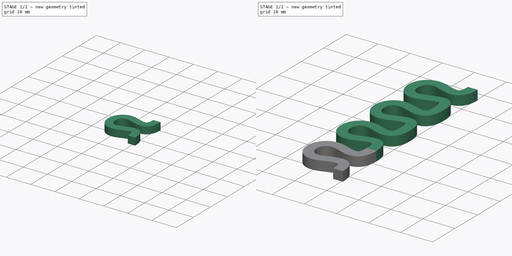
[diagram: build sequence overview — one tinted view per stage of 2, left to right]
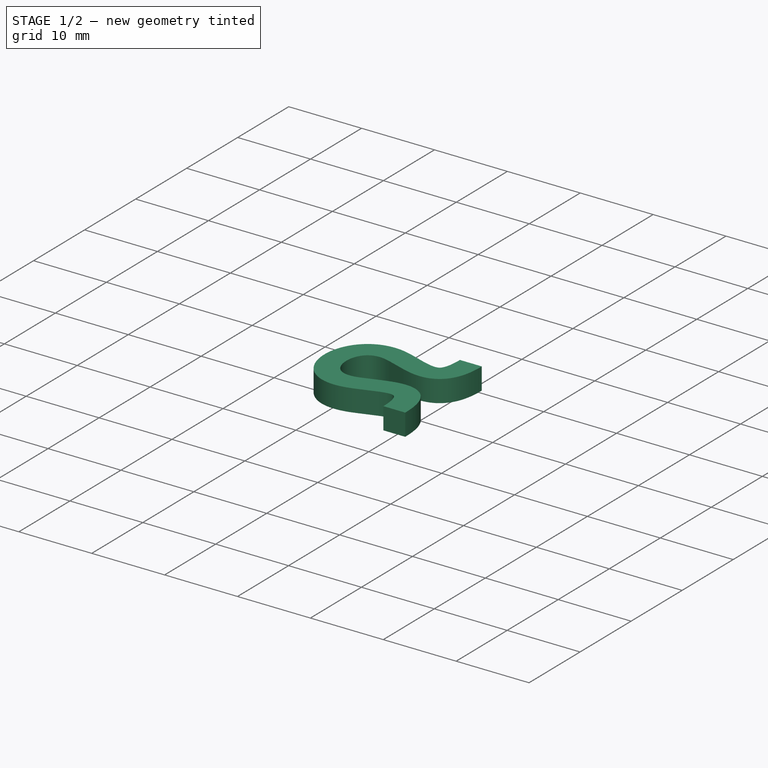
[diagram: stage 1 of 2 — iso view after this stage's code; geometry added in this stage tinted green]
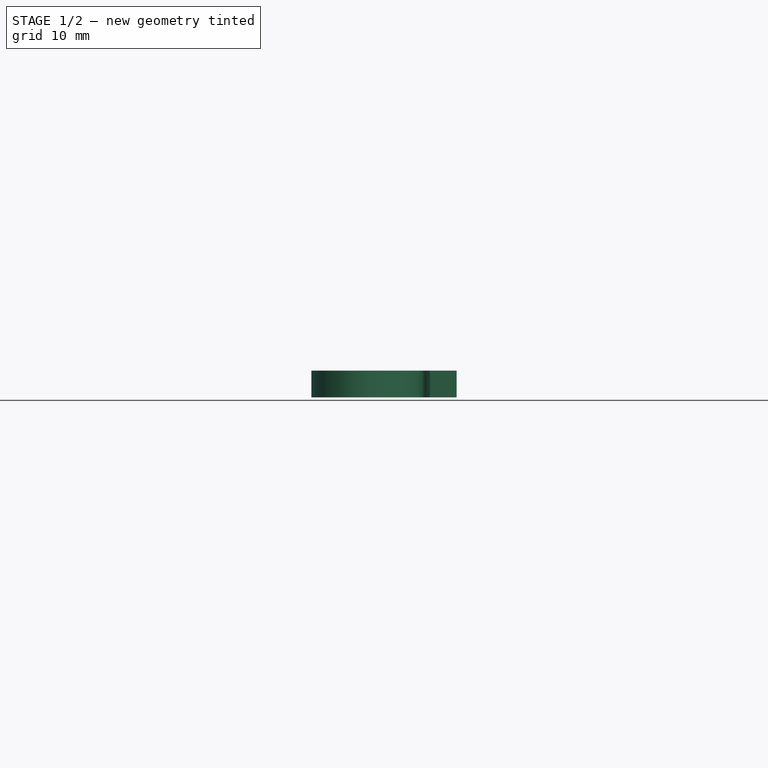
[diagram: stage 1 of 2 — front view after this stage's code; geometry added in this stage tinted green]
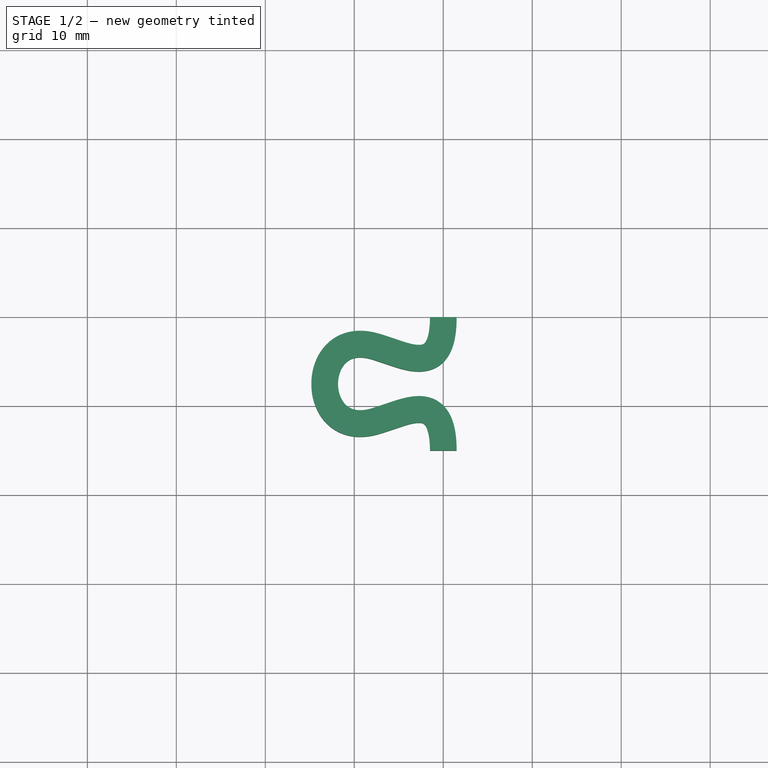
[diagram: stage 1 of 2 — top view after this stage's code; geometry added in this stage tinted green]
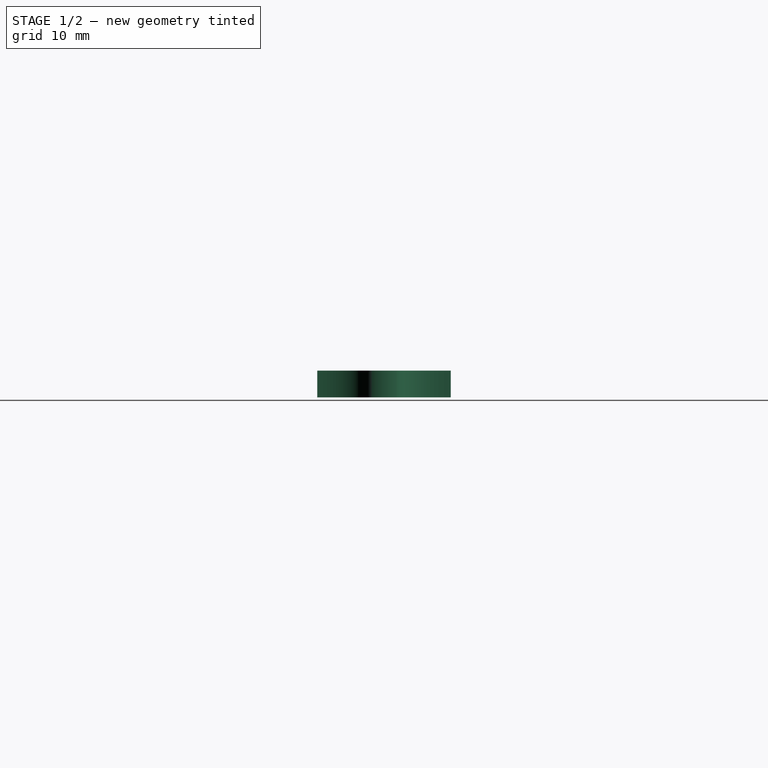
[diagram: stage 1 of 2 — right view after this stage's code; geometry added in this stage tinted green]
FCSTD DOCUMENT  (FreeCAD 1.1R20251111 (Git shallow))
Label: spring
License: All rights reserved
LicenseURL: https://en.wikipedia.org/wiki/All_rights_reserved
objects: Sketcher::SketchObject×2, App::Point×1, PartDesign::AdditivePipe×1, PartDesign::LinearPattern×1, PartDesign::Body×1
note: 10 computed .brp shape members not serialized (recipe doc carries the construction recipe); baked Part::Feature solids carry a one-line shape summary decoded from their .brp

FEATURE [App::Point] Origin001
  Role = Origin
FEATURE [Sketcher::SketchObject] Sketch
  ArcFitTolerance = 1e-06
  AttachmentSupport = -> [Origin]
  ExternalTypes = [0]
  FullyConstrained = true
  MakeInternals = false
  MapMode = 5
  sketch-geometry (19):
    g0-g6: Circle [constr] x7 (B-spline internal-alignment scaffolding for g7; pole/knot coordinates omitted)
    g7: BSplineCurve PolesCount=7 KnotsCount=5 Degree=3 IsPeriodic=0
    g8-g12: GeomPoint [constr] x5 (B-spline internal-alignment scaffolding for g7; pole/knot coordinates omitted)
    g13: LineSegment [constr] StartX=0 StartY=-7.5 StartZ=0 EndX=-10 EndY=-7.5 EndZ=0
    g14: LineSegment [constr] StartX=-10 StartY=-7.5 StartZ=0 EndX=-10 EndY=0 EndZ=0
    g15: LineSegment [constr] StartX=-10 StartY=-7.5 StartZ=0 EndX=-10 EndY=-15 EndZ=0
    g16: LineSegment [constr] StartX=0 StartY=-7.5 StartZ=0 EndX=0 EndY=0 EndZ=0
    g17: LineSegment [constr] StartX=0 StartY=-7.5 StartZ=0 EndX=0 EndY=-15 EndZ=0
    g18: LineSegment [constr] StartX=-10 StartY=-7.5 StartZ=0 EndX=-15 EndY=-7.5 EndZ=0
  constraints (29):
    c: Weight(g0) = 1
    c: Equal(g0, g1-g6) x6
    c: InternalAlignment(g0-g6 -> g7) x7
    c: InternalAlignment(g8-g12 -> g7) x5
    c: Coincident(g0,g-1)
    c: PointOnObject(g1,g-2)
    c: PointOnObject(g6,g-2)
    c: Coincident(g5,g1)
    c: Coincident(g13,g1)
    c: Horizontal(g13)
    c: Coincident(g14,g13)
    c: Vertical(g14)
    c: Coincident(g15,g13)
    c: Vertical(g15)
    c: Coincident(g14,g2)
    c: Coincident(g15,g4)
    c: Equal(g14,g15)
    c: Coincident(g16,g1)
    c: Coincident(g16,g7)
    c: Coincident(g17,g1)
    c: Coincident(g17,g7)
    c: Equal(g16,g17)
    c: Coincident(g18,g13)
    c: Horizontal(g18)
    c: Coincident(g18,g3)
    c: DistanceX(g18,g18) = 5
    c: DistanceX(g2,g0) = 10
    c: Equal(g14,g16)
    c: DistanceY(g7,g0) = 15
FEATURE [Sketcher::SketchObject] Sketch001
  ArcFitTolerance = 1e-06
  AttachmentSupport = -> [Origin]
  ExternalTypes = [0]
  FullyConstrained = false
  MakeInternals = false
  MapMode = 5
  Placement = pos=(0,0,0) rot=(1,0,0;1.5708rad)
  sketch-geometry (5):
    g0: LineSegment StartX=-1.49266 StartY=-1.5 StartZ=0 EndX=1.50734 EndY=-1.5 EndZ=0
    g1: LineSegment StartX=1.50734 StartY=-1.5 StartZ=0 EndX=1.50734 EndY=1.5 EndZ=0
    g2: LineSegment StartX=1.50734 StartY=1.5 StartZ=0 EndX=-1.49266 EndY=1.5 EndZ=0
    g3: LineSegment StartX=-1.49266 StartY=1.5 StartZ=0 EndX=-1.49266 EndY=-1.5 EndZ=0
    g4: GeomPoint [constr] X=0.007344 Y=0 Z=0
  constraints (12):
    c: Coincident(g0,g1)
    c: Coincident(g1,g2)
    c: Coincident(g2,g3)
    c: Coincident(g3,g0)
    c: Horizontal(g0)
    c: Horizontal(g2)
    c: Vertical(g1)
    c: Vertical(g3)
    c: Symmetric(g2,g0,g4)
    c: Distance(g1,g3) = 3
    c: Distance(g0,g2) = 3
    c: PointOnObject(g4,g-1)
FEATURE [PartDesign::AdditivePipe] AdditivePipe
  AuxiliaryCurvilinear = true
  AuxiliarySpineTangent = false
  Binormal = (0,0,0)
  Mode = 0
  Profile = -> Sketch001
  Refine = true
  Spine = -> Sketch
  SpineTangent = false
  Suppressed = false
  Transformation = 0
  Transition = 0
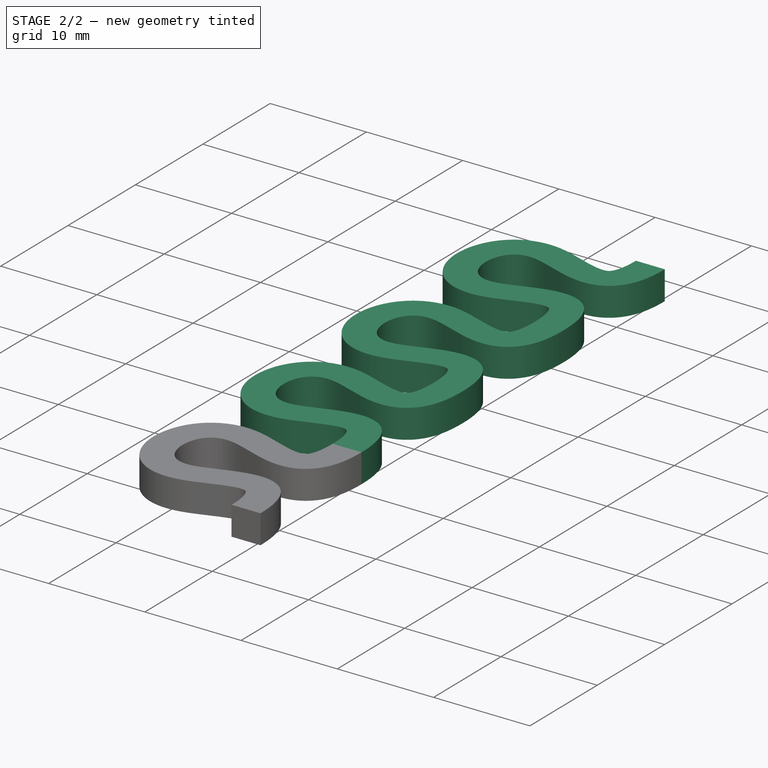
[diagram: stage 2 of 2 — iso view after this stage's code; geometry added in this stage tinted green]
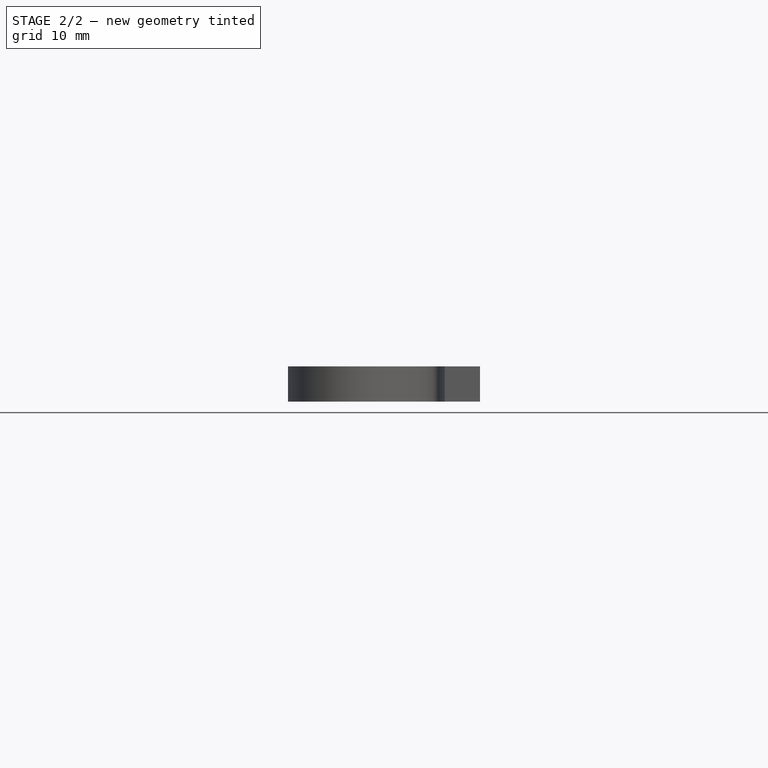
[diagram: stage 2 of 2 — front view after this stage's code; geometry added in this stage tinted green]
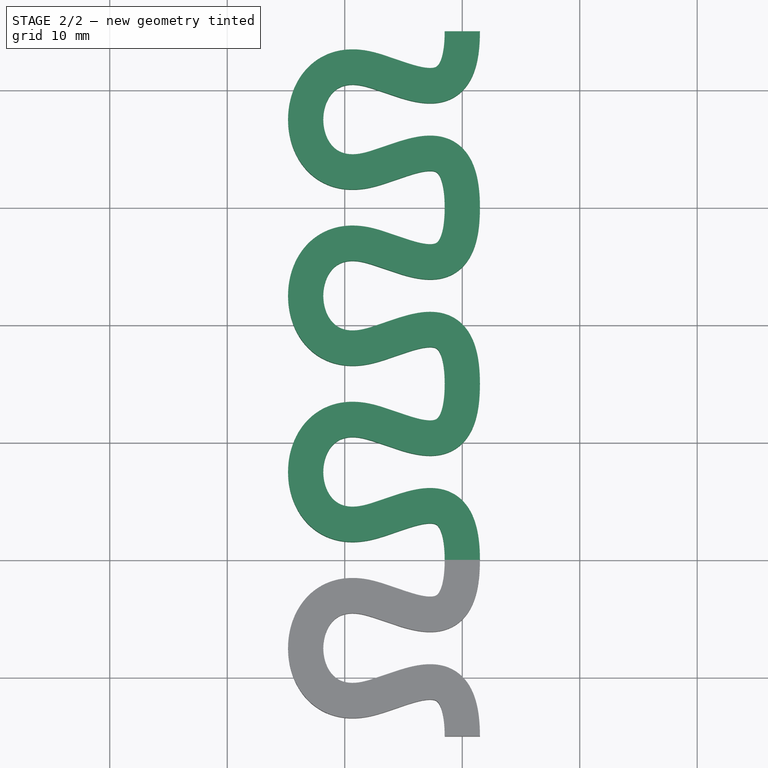
[diagram: stage 2 of 2 — top view after this stage's code; geometry added in this stage tinted green]
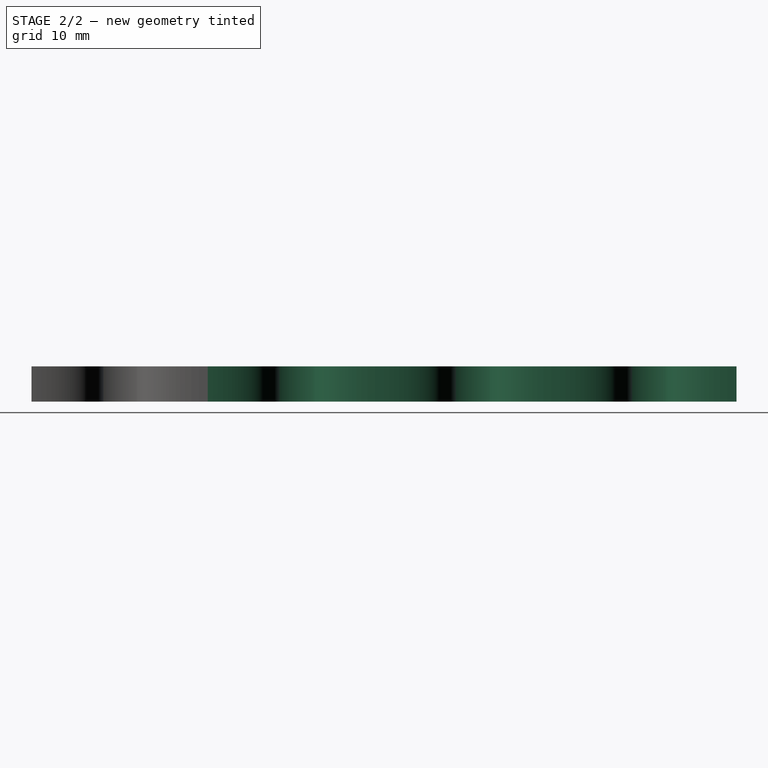
[diagram: stage 2 of 2 — right view after this stage's code; geometry added in this stage tinted green]
FEATURE [PartDesign::LinearPattern] LinearPattern
  BaseFeature = -> AdditivePipe
  Direction = -> Y_Axis
  Direction2 = -> X_Axis
  Length = 45
  Length2 = 100
  Mode = 1
  Mode2 = 0
  Occurrences = 4
  Occurrences2 = 1
  Offset = 15
  Offset2 = 100
  Refine = true
  Reversed2 = false
  SpacingPattern = [15]
  SpacingPattern2 = [0]
  Spacings = [-1,-1,-1]
  Suppressed = false
  TransformMode = 1
FEATURE [PartDesign::Body] Body
  AllowCompound = true
  Group = -> [Sketch,Sketch001,AdditivePipe,LinearPattern]
  Origin = -> Origin
  Tip = -> LinearPattern
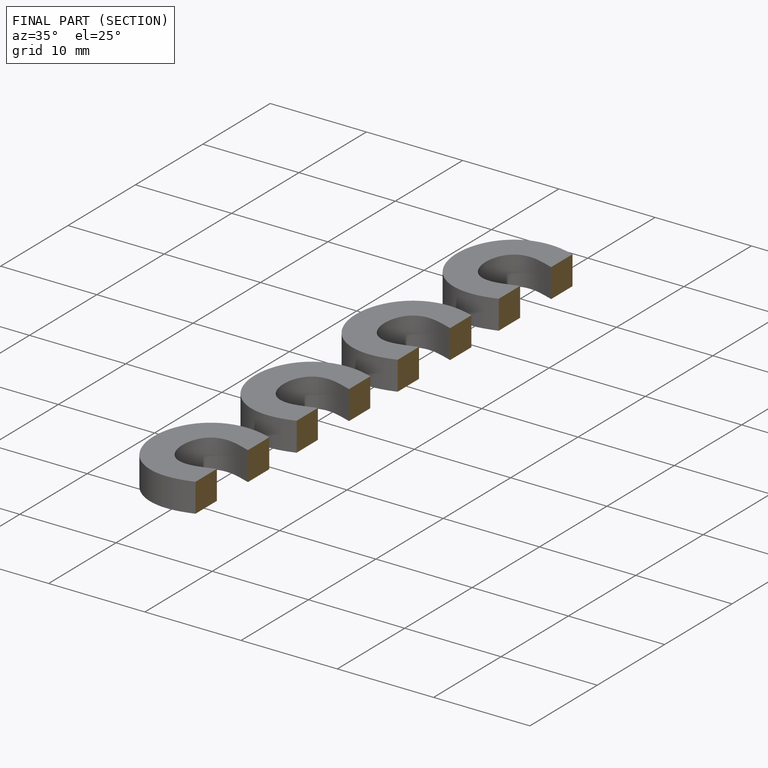
[diagram: finished part — half-section view (interior)]
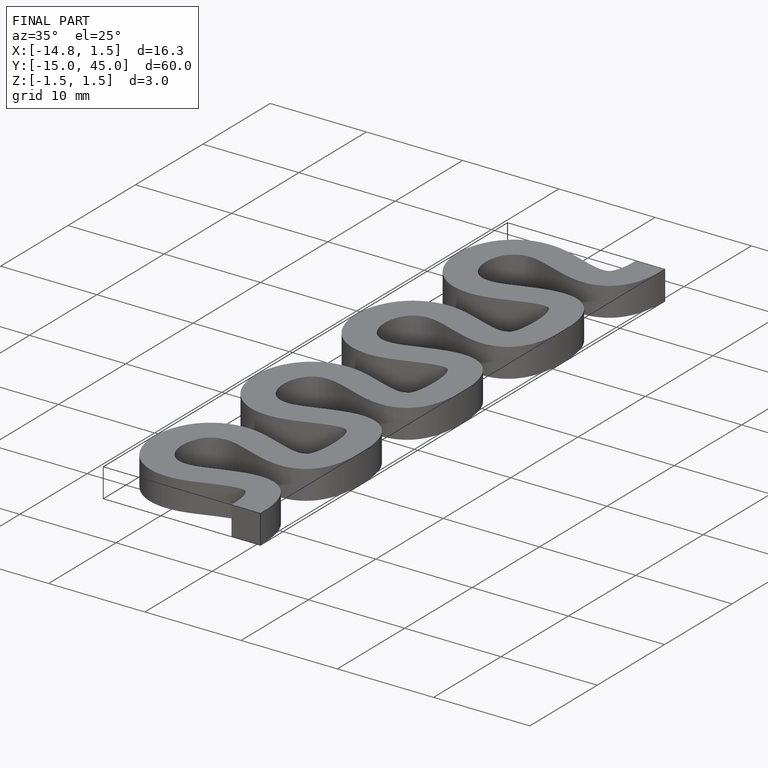
[diagram: finished part — iso view with bounding-box wireframe]
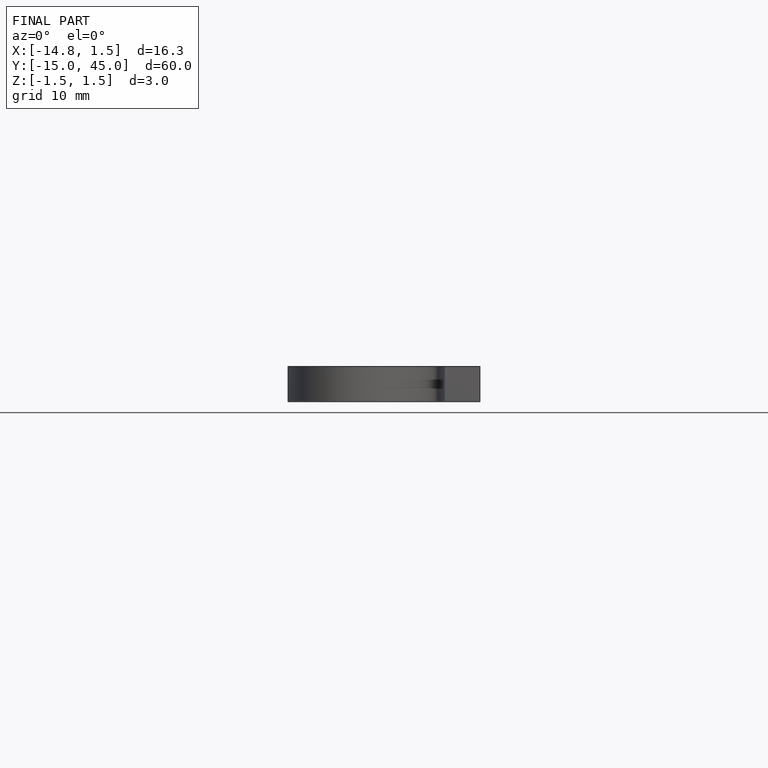
[diagram: finished part — front view with bounding-box wireframe]
